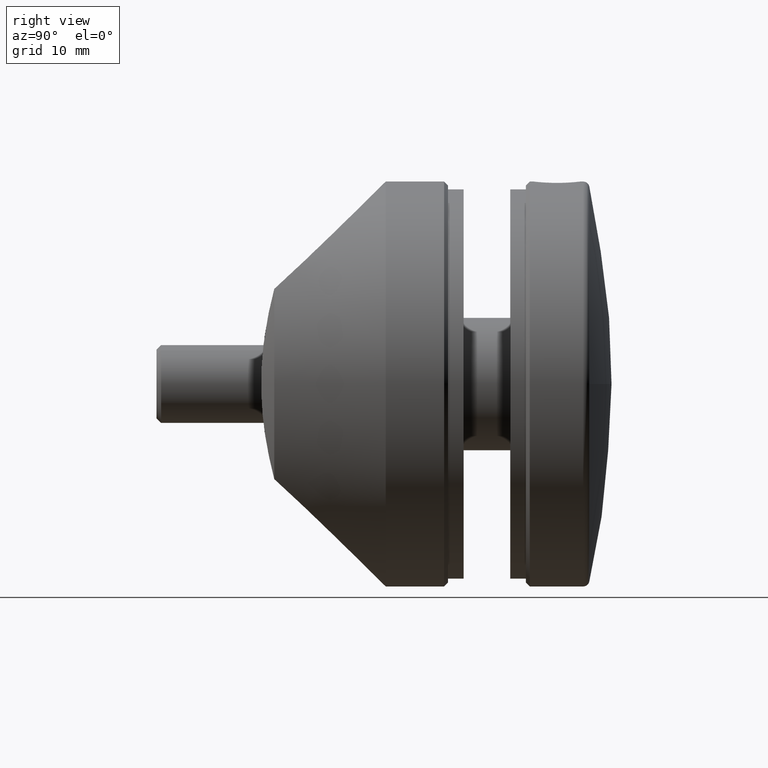
[diagram: clean part render]
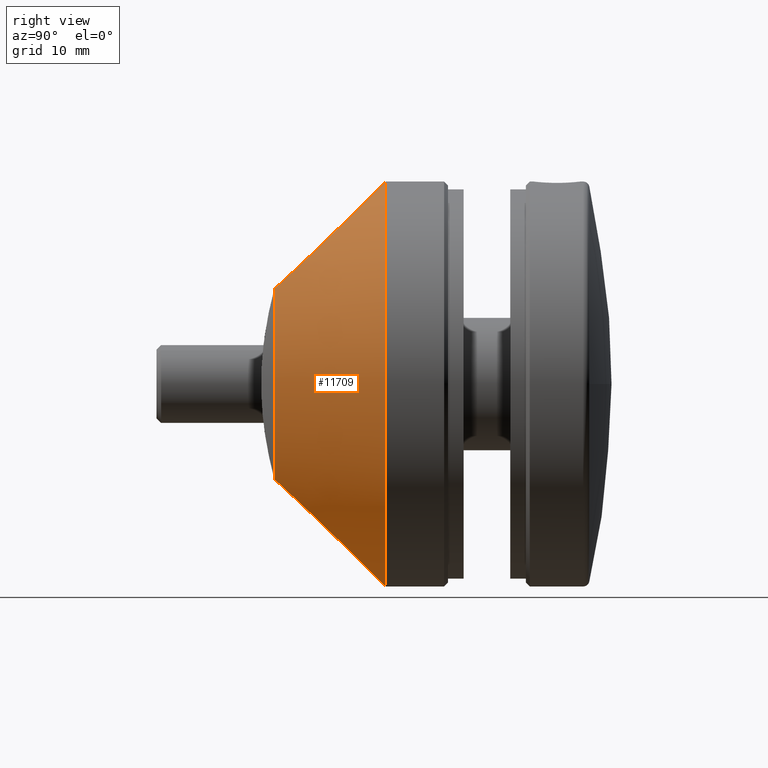
[diagram: same view with one face highlighted and labeled with its STEP entity id]
A machine part, right view. The second image highlights one B-rep face of the part: STEP entity #11709.
In plain terms, the highlighted conical surface has half-angle 10 deg.
Its self-contained STEP definition (entity closure, byte-faithful):
#21 = FACE_OUTER_BOUND ( 'NONE', #15644, .T. ) ;
#85 = CARTESIAN_POINT ( 'NONE',  ( 17.70582374587864294, -13.53001659525489586, 16.67852650036946827 ) ) ;
#240 = CARTESIAN_POINT ( 'NONE',  ( 11.44834442484418702, -7.348271168541026022, -22.69110437563208293 ) ) ;
#297 = CARTESIAN_POINT ( 'NONE',  ( 12.36786358796310559, -7.972557862197271916, -22.07724547063636678 ) ) ;
#918 = CARTESIAN_POINT ( 'NONE',  ( 2.511703486699939702, -4.146952982148047084, 25.85428325428989638 ) ) ;
#976 = DIRECTION ( 'NONE',  ( 0.000000000000000000, 0.000000000000000000, 1.000000000000000000 ) ) ;
#1043 = CARTESIAN_POINT ( 'NONE',  ( 0.6301449172127067122, -4.000000000000004441, 26.00000000000000000 ) ) ;
#1363 = CARTESIAN_POINT ( 'NONE',  ( 0.000000000000000000, -4.000000000000000000, 0.000000000000000000 ) ) ;
#1403 = CARTESIAN_POINT ( 'NONE',  ( 20.04975050106186174, -18.31178507556786528, 12.21274042284001915 ) ) ;
#1467 = CONICAL_SURFACE ( 'NONE', #15421, 26.00000000000000355, 0.1745329251994258979 ) ;
#1496 = ORIENTED_EDGE ( 'NONE', *, *, #12007, .T. ) ;
#1510 = CARTESIAN_POINT ( 'NONE',  ( 19.73792835585098615, -17.40415424802088395, -13.03230439393257001 ) ) ;
#1615 = CARTESIAN_POINT ( 'NONE',  ( 4.980782523889333291, -4.584336044514166097, -25.42080124741476155 ) ) ;
#2020 = CARTESIAN_POINT ( 'NONE',  ( 0.000000000000000000, -4.000000000000000000, 0.000000000000000000 ) ) ;
#2565 = CARTESIAN_POINT ( 'NONE',  ( 18.47373782067421999, -14.78836774225557704, 15.48029252888773044 ) ) ;
#2691 = CARTESIAN_POINT ( 'NONE',  ( 16.86044409589624138, -12.31030436209828594, 17.84884354317561161 ) ) ;
#2730 = VERTEX_POINT ( 'NONE', #5405 ) ;
#2878 = DIRECTION ( 'NONE',  ( 0.000000000000000000, 0.000000000000000000, 1.000000000000000000 ) ) ;
#3712 = CARTESIAN_POINT ( 'NONE',  ( 8.418653566753889095, -5.734428380248112411, 24.28282590690424314 ) ) ;
#4214 = DIRECTION ( 'NONE',  ( 0.000000000000000000, 0.000000000000000000, 1.000000000000000000 ) ) ;
#4295 = CARTESIAN_POINT ( 'NONE',  ( 6.160588300326682365, -4.905642491823565265, -25.10261554540658580 ) ) ;
#4556 = CARTESIAN_POINT ( 'NONE',  ( 3.155488081569044034, -4.226922496823954489, -25.77499429031801625 ) ) ;
#4897 = CARTESIAN_POINT ( 'NONE',  ( 2.198743258422990454, -4.111981611935729752, 25.88895734041324559 ) ) ;
#5184 = VERTEX_POINT ( 'NONE', #5592 ) ;
#5197 = CARTESIAN_POINT ( 'NONE',  ( 19.36452195128605425, -16.51687420688788777, 13.85454133433198542 ) ) ;
#5260 = CARTESIAN_POINT ( 'NONE',  ( 19.73731851255062608, -17.40237915735497509, 13.03390724865174732 ) ) ;
#5405 = CARTESIAN_POINT ( 'NONE',  ( 0.000000000000000000, -4.000000000000000000, -26.00000000000000355 ) ) ;
#5505 = ORIENTED_EDGE ( 'NONE', *, *, #8332, .F. ) ;
#5592 = CARTESIAN_POINT ( 'NONE',  ( 20.04975050106185819, -18.31178507556786172, -12.21274042284001560 ) ) ;
#5961 = CARTESIAN_POINT ( 'NONE',  ( 1.262227938019432560, -4.028046886231822832, -25.97218331234857303 ) ) ;
#6217 = CARTESIAN_POINT ( 'NONE',  ( 3.449812551113680126, -4.280218648577045037, 25.72217363214869223 ) ) ;
#6532 = CARTESIAN_POINT ( 'NONE',  ( -1.334442812236734961E-15, -4.000000000000003553, 26.00000000000000000 ) ) ;
#6643 = CARTESIAN_POINT ( 'NONE',  ( 12.37667418698942079, -7.953684144500162922, 22.09520254437739339 ) ) ;
#6797 = CARTESIAN_POINT ( 'NONE',  ( 16.23564447411319023, -11.52908716236806619, -18.60466485552761640 ) ) ;
#6961 = CARTESIAN_POINT ( 'NONE',  ( 14.07727085341871920, -9.311746036289154205, -20.76387661224074321 ) ) ;
#7558 = CARTESIAN_POINT ( 'NONE',  ( 3.136774038176846968, -4.230973037014679861, 25.77098897495121221 ) ) ;
#7731 = CARTESIAN_POINT ( 'NONE',  ( 9.989422284442724731, -6.492468424308502684, 23.53437446117672138 ) ) ;
#8029 = CARTESIAN_POINT ( 'NONE',  ( 16.23442821755797283, -11.52773898937020114, 18.60597413987124327 ) ) ;
#8100 = AXIS2_PLACEMENT_3D ( 'NONE', #10107, #12669, #976 ) ;
#8128 = CARTESIAN_POINT ( 'NONE',  ( 10.97264957692961573, -7.051662195814985878, -22.98317510542267428 ) ) ;
#8177 = AXIS2_PLACEMENT_3D ( 'NONE', #2020, #16052, #4214 ) ;
#8185 = CARTESIAN_POINT ( 'NONE',  ( 18.00144306254872006, -13.95795307300608634, -16.26799531566691215 ) ) ;
#8281 = CARTESIAN_POINT ( 'NONE',  ( 16.86598744560654595, -12.31690879766976643, -17.84243286404749185 ) ) ;
#8332 = EDGE_CURVE ( 'NONE', #15889, #2730, #13118, .T. ) ;
#8431 = CARTESIAN_POINT ( 'NONE',  ( 2.529635280041398371, -4.141848054278725932, -25.85934315874523648 ) ) ;
#8677 = CIRCLE ( 'NONE', #8100, 23.47644614907675731 ) ;
#9270 = CARTESIAN_POINT ( 'NONE',  ( 11.46523880121977790, -7.331886496871981684, 22.70695781783441092 ) ) ;
#9333 = CARTESIAN_POINT ( 'NONE',  ( 15.19008335602018533, -10.40259438919726698, 19.69975196223492020 ) ) ;
#9367 = B_SPLINE_CURVE_WITH_KNOTS ( 'NONE', 3,
 ( #14634, #1510, #10741, #13362, #8185, #8281, #6797, #15974, #6961, #14696, #297, #240, #8128, #9483, #10792, #9533, #4295, #1615, #13469, #4556, #8431, #5961, #15127, #10946 ),
 .UNSPECIFIED., .F., .F.,
 ( 4, 2, 2, 2, 2, 2, 2, 2, 2, 2, 2, 4 ),
 ( 0.002297940989160614147, 0.006073350470224597904, 0.009848759951288584696, 0.01362416943235257062, 0.01739957891341656002, 0.01928728365394856079, 0.02117498839448055808, 0.02495039787554455962, 0.02683810261607656039, 0.02872580735660856116, 0.03061351209714055499, 0.03250121683767255576 ),
 .UNSPECIFIED. ) ;
#9483 = CARTESIAN_POINT ( 'NONE',  ( 9.494678949256693201, -6.211164153056638604, -23.81165795107294869 ) ) ;
#9533 = CARTESIAN_POINT ( 'NONE',  ( 6.740810575096707780, -5.091134096301684231, -24.91900092882634965 ) ) ;
#10107 = CARTESIAN_POINT ( 'NONE',  ( 3.176588345762930371E-15, -18.31178507556786528, 0.000000000000000000 ) ) ;
#10213 = CARTESIAN_POINT ( 'NONE',  ( 20.04975050106186174, -18.31178507556786528, 12.21274042284001915 ) ) ;
#10242 = EDGE_CURVE ( 'NONE', #5184, #2730, #9367, .T. ) ;
#10292 = CARTESIAN_POINT ( 'NONE',  ( 6.172287682405154463, -4.882812006438804531, 25.12506366514397271 ) ) ;
#10355 = ORIENTED_EDGE ( 'NONE', *, *, #12441, .T. ) ;
#10741 = CARTESIAN_POINT ( 'NONE',  ( 19.36651560022187368, -16.52193010175751908, -13.84988018404547638 ) ) ;
#10768 = DIRECTION ( 'NONE',  ( -0.000000000000000000, 1.000000000000000000, -0.000000000000000000 ) ) ;
#10792 = CARTESIAN_POINT ( 'NONE',  ( 8.442212970156463214, -5.715926998300734141, -24.30099103360291224 ) ) ;
#10946 = CARTESIAN_POINT ( 'NONE',  ( 0.000000000000000000, -4.000000000000000000, -26.00000000000000355 ) ) ;
#10982 = ORIENTED_EDGE ( 'NONE', *, *, #10242, .T. ) ;
#11471 = CARTESIAN_POINT ( 'NONE',  ( -1.334442812236734961E-15, -4.000000000000003553, 26.00000000000000000 ) ) ;
#11589 = CARTESIAN_POINT ( 'NONE',  ( 7.865265167696143145, -5.503834900117100304, 24.51077944591655111 ) ) ;
#11709 = ADVANCED_FACE ( 'NONE', ( #21 ), #1467, .T. ) ;
#11832 = B_SPLINE_CURVE_WITH_KNOTS ( 'NONE', 3,
 ( #11471, #1043, #14166, #4897, #918, #7558, #6217, #16819, #10292, #11589, #3712, #15569, #7731, #9270, #6643, #11897, #17068, #15872, #9333, #8029, #2691, #85, #13213, #2565, #15751, #5197, #5260, #1403 ),
 .UNSPECIFIED., .F., .F.,
 ( 4, 2, 2, 2, 2, 2, 2, 2, 2, 2, 2, 2, 2, 4 ),
 ( 0.03250121683767255576, 0.03438855639337293213, 0.03533222617122311338, 0.03627589594907330156, 0.04005057506047404042, 0.04193791461617440985, 0.04382525417187478622, 0.04759993328327552509, 0.04948727283897589452, 0.05137461239467626395, 0.05514929150607701669, 0.05703663106177739306, 0.05892397061747777637, 0.06269864972887852217 ),
 .UNSPECIFIED. ) ;
#11897 = CARTESIAN_POINT ( 'NONE',  ( 13.64882384639593127, -8.969042657942406294, 21.09982154693641476 ) ) ;
#12007 = EDGE_CURVE ( 'NONE', #12195, #5184, #8677, .T. ) ;
#12195 = VERTEX_POINT ( 'NONE', #10213 ) ;
#12441 = EDGE_CURVE ( 'NONE', #15889, #12195, #11832, .T. ) ;
#12669 = DIRECTION ( 'NONE',  ( -0.000000000000000000, 1.000000000000000000, -0.000000000000000000 ) ) ;
#13118 = CIRCLE ( 'NONE', #8177, 26.00000000000000355 ) ;
#13213 = CARTESIAN_POINT ( 'NONE',  ( 17.97191971674750732, -13.94428247368052176, 16.28262472551384121 ) ) ;
#13362 = CARTESIAN_POINT ( 'NONE',  ( 18.49823332097532003, -14.79874105431569298, -15.46761029856227232 ) ) ;
#13469 = CARTESIAN_POINT ( 'NONE',  ( 4.380002049790537200, -4.448068354223405407, -25.55582070178851950 ) ) ;
#14166 = CARTESIAN_POINT ( 'NONE',  ( 1.258596022136127424, -4.028039725612252653, 25.97219051123856914 ) ) ;
#14634 = CARTESIAN_POINT ( 'NONE',  ( 20.04975050106185819, -18.31178507556786172, -12.21274042284001560 ) ) ;
#14696 = CARTESIAN_POINT ( 'NONE',  ( 12.81178263884912560, -8.300598596729658496, -21.75510605095808003 ) ) ;
#15127 = CARTESIAN_POINT ( 'NONE',  ( 0.6302668451216466572, -4.000000000000003553, -26.00000000000000711 ) ) ;
#15421 = AXIS2_PLACEMENT_3D ( 'NONE', #1363, #10768, #2878 ) ;
#15569 = CARTESIAN_POINT ( 'NONE',  ( 9.479275906682250508, -6.228296474862843546, 23.79506796805386415 ) ) ;
#15644 = EDGE_LOOP ( 'NONE', ( #10355, #1496, #10982, #5505 ) ) ;
#15751 = CARTESIAN_POINT ( 'NONE',  ( 18.70896034290829135, -15.21750788266293064, 15.07451532608456013 ) ) ;
#15872 = CARTESIAN_POINT ( 'NONE',  ( 14.82433439118758578, -10.03571326096090566, 20.05733922335845065 ) ) ;
#15889 = VERTEX_POINT ( 'NONE', #6532 ) ;
#15974 = CARTESIAN_POINT ( 'NONE',  ( 14.84147612827237595, -10.02697803211723482, -20.06489558401777984 ) ) ;
#16052 = DIRECTION ( 'NONE',  ( -0.000000000000000000, 1.000000000000000000, -0.000000000000000000 ) ) ;
#16819 = CARTESIAN_POINT ( 'NONE',  ( 4.993862310070636745, -4.558375207007062890, 25.44649691620855592 ) ) ;
#17068 = CARTESIAN_POINT ( 'NONE',  ( 14.05434036068268355, -9.319445870133195697, 20.75687468556314386 ) ) ;